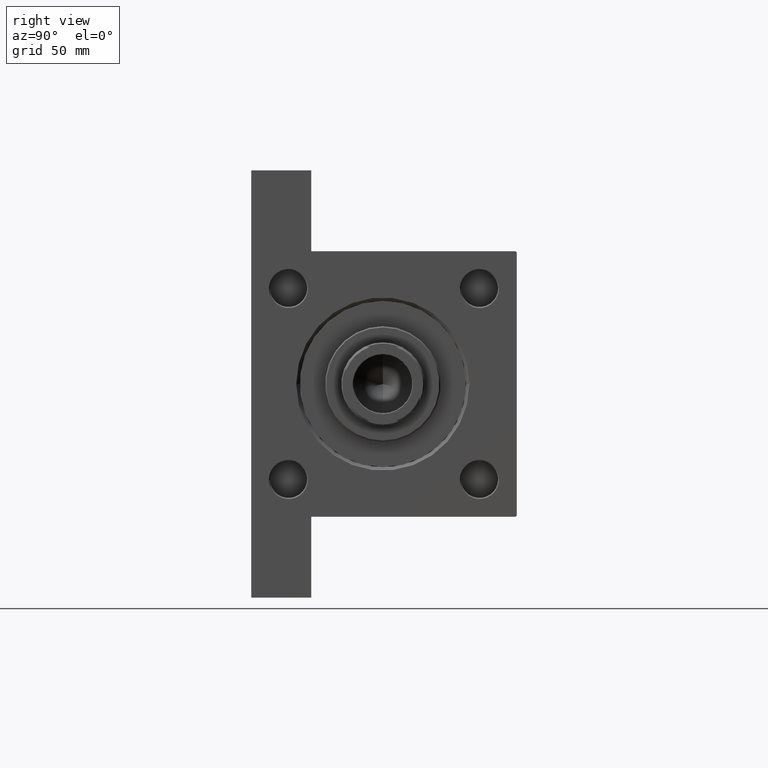
[diagram: clean part render]
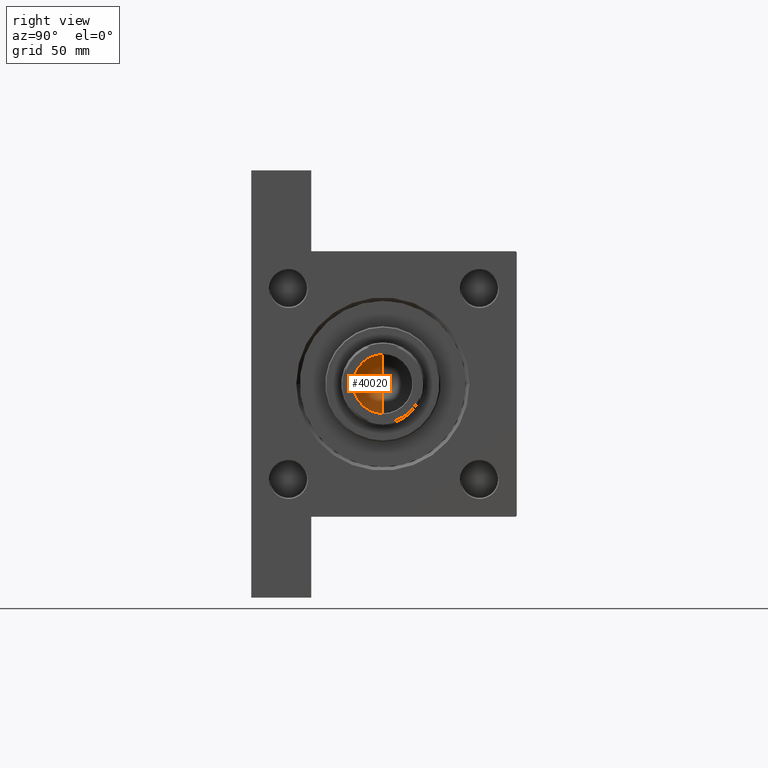
[diagram: same view with one face highlighted and labeled with its STEP entity id]
A machine part, right view. The second image highlights one B-rep face of the part: STEP entity #40020.
In plain terms, the highlighted conical surface has half-angle 59 deg.
Its self-contained STEP definition (entity closure, byte-faithful):
#2607 = CARTESIAN_POINT ( 'NONE',  ( -1.410643066818227497E-14, 0.000000000000000000, 113.3390271073986071 ) ) ;
#2631 = CARTESIAN_POINT ( 'NONE',  ( 12.74999999999998934, 0.000000000000000000, 121.0000000000000142 ) ) ;
#2768 = VECTOR ( 'NONE', #11451, 1000.000000000000000 ) ;
#3755 = CARTESIAN_POINT ( 'NONE',  ( 0.000000000000000000, 0.000000000000000000, 121.0000000000000142 ) ) ;
#3992 = FACE_OUTER_BOUND ( 'NONE', #30819, .T. ) ;
#6461 = CARTESIAN_POINT ( 'NONE',  ( -12.74999999999998934, 1.561424668912873928E-15, 121.0000000000000142 ) ) ;
#9233 = EDGE_CURVE ( 'NONE', #26741, #40950, #47968, .T. ) ;
#10741 = VECTOR ( 'NONE', #24443, 1000.000000000000000 ) ;
#11367 = DIRECTION ( 'NONE',  ( 1.000000000000000000, 0.000000000000000000, 0.000000000000000000 ) ) ;
#11451 = DIRECTION ( 'NONE',  ( 0.8571673007021117785, 0.000000000000000000, 0.5150380749100550437 ) ) ;
#14559 = ORIENTED_EDGE ( 'NONE', *, *, #30108, .F. ) ;
#14632 = CARTESIAN_POINT ( 'NONE',  ( 12.74999999999998934, 0.000000000000000000, 121.0000000000000142 ) ) ;
#15416 = DIRECTION ( 'NONE',  ( 1.000000000000000000, 0.000000000000000000, 0.000000000000000000 ) ) ;
#22583 = AXIS2_PLACEMENT_3D ( 'NONE', #3755, #30001, #15416 ) ;
#24443 = DIRECTION ( 'NONE',  ( -0.8571673007021117785, 1.049727191138617956E-16, 0.5150380749100550437 ) ) ;
#24813 = AXIS2_PLACEMENT_3D ( 'NONE', #33504, #25238, #11367 ) ;
#25238 = DIRECTION ( 'NONE',  ( -0.000000000000000000, -0.000000000000000000, 1.000000000000000000 ) ) ;
#26741 = VERTEX_POINT ( 'NONE', #2607 ) ;
#30001 = DIRECTION ( 'NONE',  ( -0.000000000000000000, -0.000000000000000000, 1.000000000000000000 ) ) ;
#30108 = EDGE_CURVE ( 'NONE', #26741, #34852, #47083, .T. ) ;
#30819 = EDGE_LOOP ( 'NONE', ( #14559, #32856, #44060 ) ) ;
#32856 = ORIENTED_EDGE ( 'NONE', *, *, #9233, .T. ) ;
#33504 = CARTESIAN_POINT ( 'NONE',  ( 0.000000000000000000, 0.000000000000000000, 121.0000000000000142 ) ) ;
#34852 = VERTEX_POINT ( 'NONE', #43509 ) ;
#35742 = EDGE_CURVE ( 'NONE', #40950, #34852, #45801, .T. ) ;
#37376 = CONICAL_SURFACE ( 'NONE', #22583, 12.74999999999998934, 1.029744258676653423 ) ;
#40020 = ADVANCED_FACE ( 'NONE', ( #3992 ), #37376, .F. ) ;
#40950 = VERTEX_POINT ( 'NONE', #2631 ) ;
#43509 = CARTESIAN_POINT ( 'NONE',  ( -12.74999999999998934, 1.561424668912873928E-15, 121.0000000000000142 ) ) ;
#44060 = ORIENTED_EDGE ( 'NONE', *, *, #35742, .T. ) ;
#45801 = CIRCLE ( 'NONE', #24813, 12.74999999999998934 ) ;
#47083 = LINE ( 'NONE', #6461, #10741 ) ;
#47968 = LINE ( 'NONE', #14632, #2768 ) ;